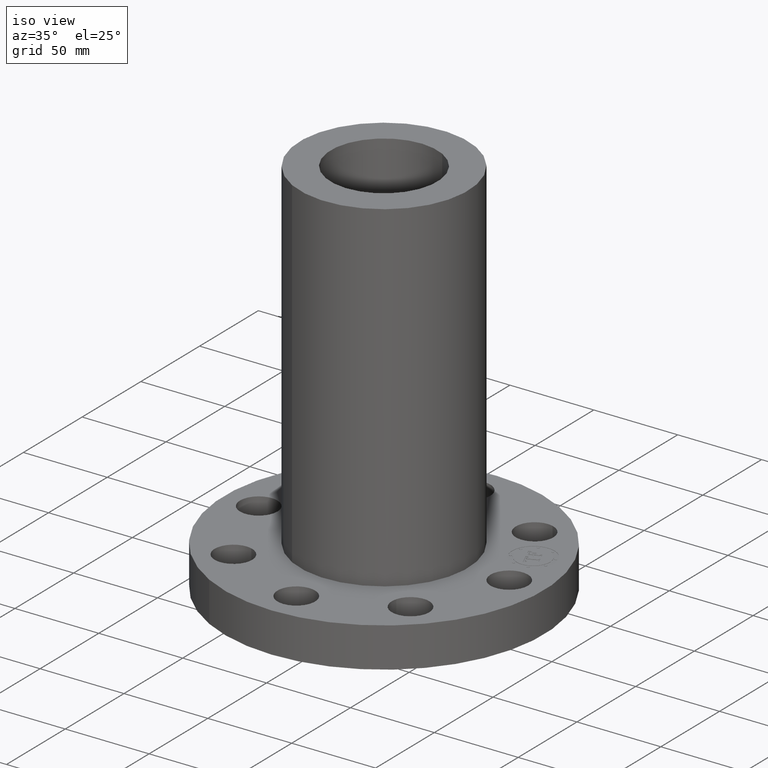
[diagram: clean part render]
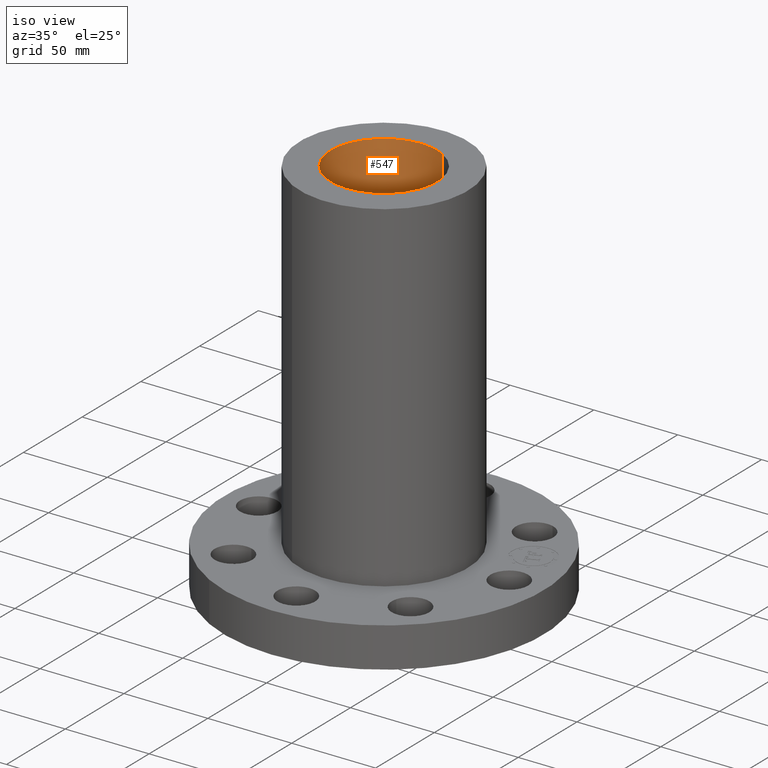
[diagram: same view with one face highlighted and labeled with its STEP entity id]
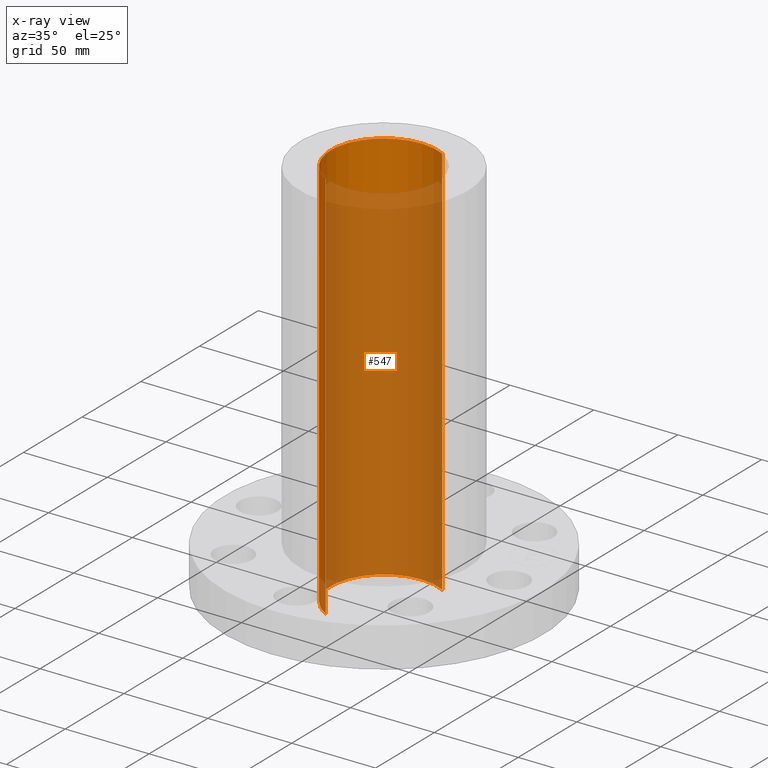
[diagram: x-ray of the same camera — body ghosted, the highlighted face saturated]
A machine part, iso view. The second image highlights one B-rep face of the part: STEP entity #547.
The next image is the same camera in x-ray: the body ghosted, the highlighted face saturated — about 85% of this face is hidden behind the body in this view.
In plain terms, the highlighted cylindrical surface (partial cylindrical patch) has radius 31.75 mm, axis along (0, 0, -1).
Its self-contained STEP definition (entity closure, byte-faithful):
#488=AXIS2_PLACEMENT_3D('Circle Axis2P3D',#486,#487,$) ;
#508=AXIS2_PLACEMENT_3D('Cylinder Axis2P3D',#505,#506,#507) ;
#538=AXIS2_PLACEMENT_3D('Circle Axis2P3D',#536,#537,$) ;
#486=CARTESIAN_POINT('Axis2P3D Location',(0.,0.,8.93750000004)) ;
#490=CARTESIAN_POINT('Vertex',(-0.599281923258,-1.09697820237,8.93750000004)) ;
#492=CARTESIAN_POINT('Vertex',(0.599281923258,1.09697820237,8.93750000004)) ;
#505=CARTESIAN_POINT('Axis2P3D Location',(0.,0.,4.31225000002)) ;
#510=CARTESIAN_POINT('Line Origine',(0.599281923258,1.09697820237,4.31225000002)) ;
#514=CARTESIAN_POINT('Vertex',(0.599281923258,1.09697820237,-0.313000000001)) ;
#521=CARTESIAN_POINT('Vertex',(-0.599281923258,-1.09697820237,-0.313000000001)) ;
#524=CARTESIAN_POINT('Line Origine',(-0.599281923258,-1.09697820237,4.31225000002)) ;
#536=CARTESIAN_POINT('Axis2P3D Location',(0.,0.,-0.313000000001)) ;
#487=DIRECTION('Axis2P3D Direction',(0.,0.,-0.0393700787402)) ;
#506=DIRECTION('Axis2P3D Direction',(0.,0.,-0.0393700787402)) ;
#507=DIRECTION('Axis2P3D XDirection',(-0.0188750212049,-0.0345504945626,0.)) ;
#511=DIRECTION('Vector Direction',(0.,0.,-0.0393700787402)) ;
#525=DIRECTION('Vector Direction',(0.,0.,-0.0393700787402)) ;
#537=DIRECTION('Axis2P3D Direction',(0.,0.,-0.0393700787402)) ;
#512=VECTOR('Line Direction',#511,0.0393700787402) ;
#526=VECTOR('Line Direction',#525,0.0393700787402) ;
#542=ORIENTED_EDGE('',*,*,#494,.F.) ;
#543=ORIENTED_EDGE('',*,*,#528,.T.) ;
#544=ORIENTED_EDGE('',*,*,#540,.T.) ;
#545=ORIENTED_EDGE('',*,*,#516,.F.) ;
#547=ADVANCED_FACE('PartBody',(#546),#509,.F.) ;
#489=CIRCLE('generated circle',#488,1.25000000001) ;
#539=CIRCLE('generated circle',#538,1.25000000001) ;
#509=CYLINDRICAL_SURFACE('generated cylinder',#508,1.25000000001) ;
#494=EDGE_CURVE('',#491,#493,#489,.T.) ;
#516=EDGE_CURVE('',#493,#515,#513,.T.) ;
#528=EDGE_CURVE('',#491,#522,#527,.T.) ;
#540=EDGE_CURVE('',#522,#515,#539,.T.) ;
#541=EDGE_LOOP('',(#542,#543,#544,#545)) ;
#546=FACE_OUTER_BOUND('',#541,.T.) ;
#513=LINE('Line',#510,#512) ;
#527=LINE('Line',#524,#526) ;
#491=VERTEX_POINT('',#490) ;
#493=VERTEX_POINT('',#492) ;
#515=VERTEX_POINT('',#514) ;
#522=VERTEX_POINT('',#521) ;